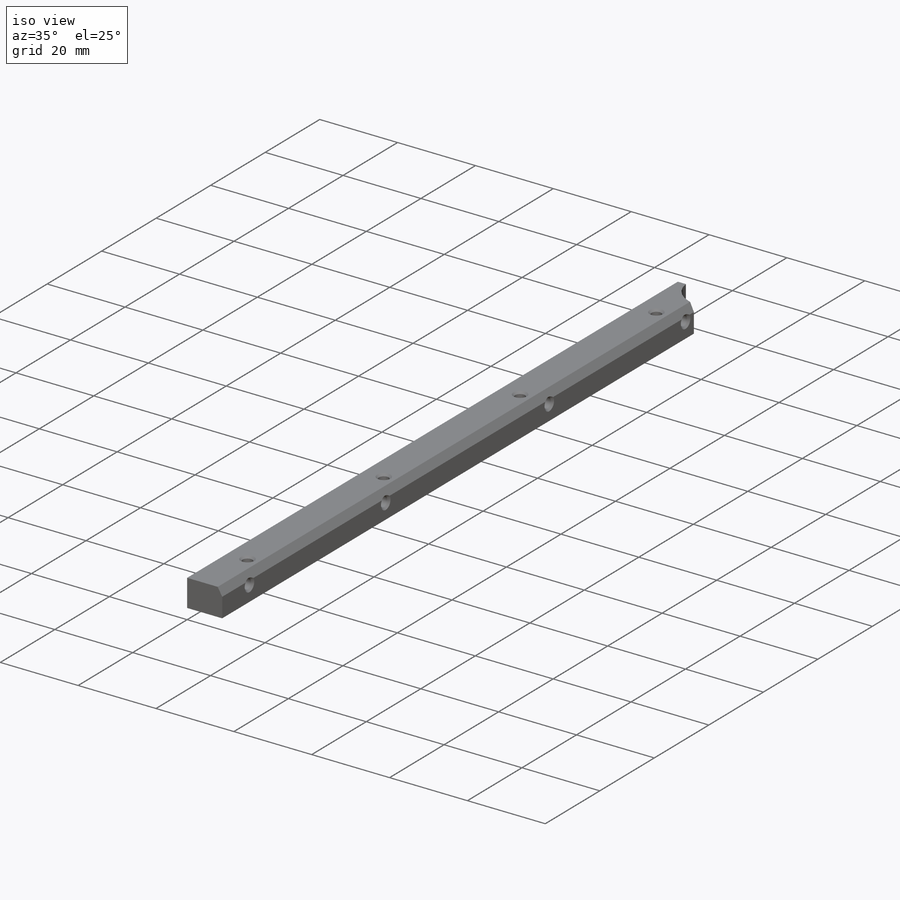
[diagram: iso view]
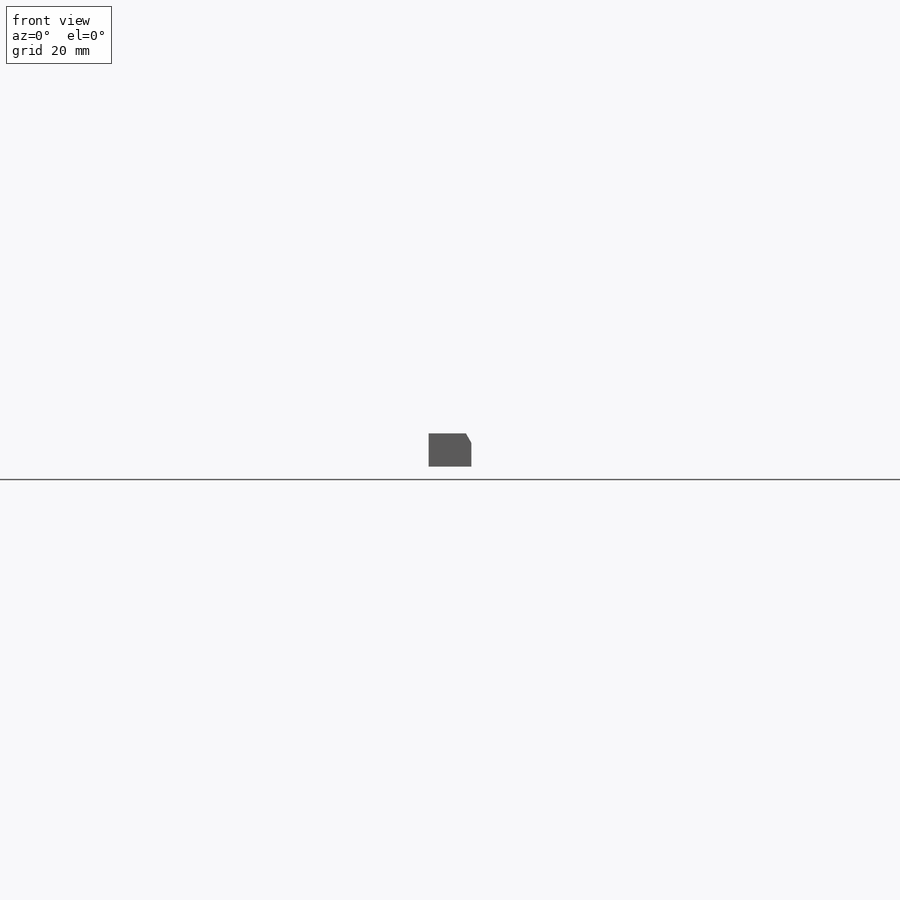
[diagram: front view]
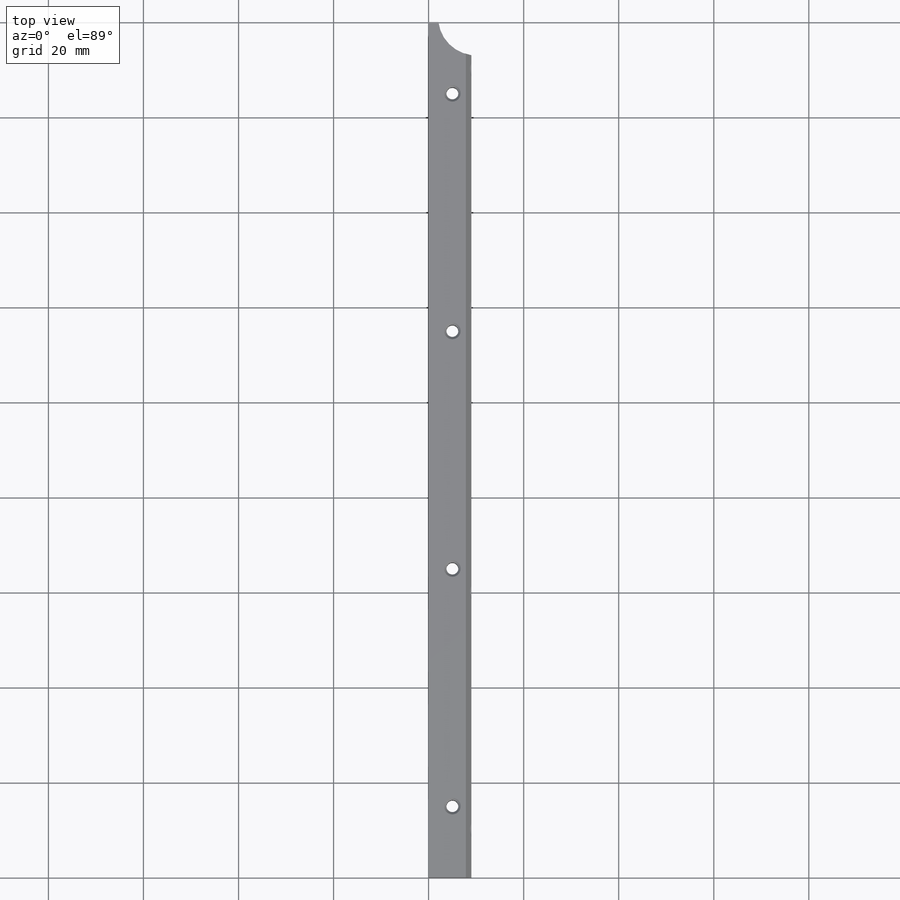
[diagram: top view]
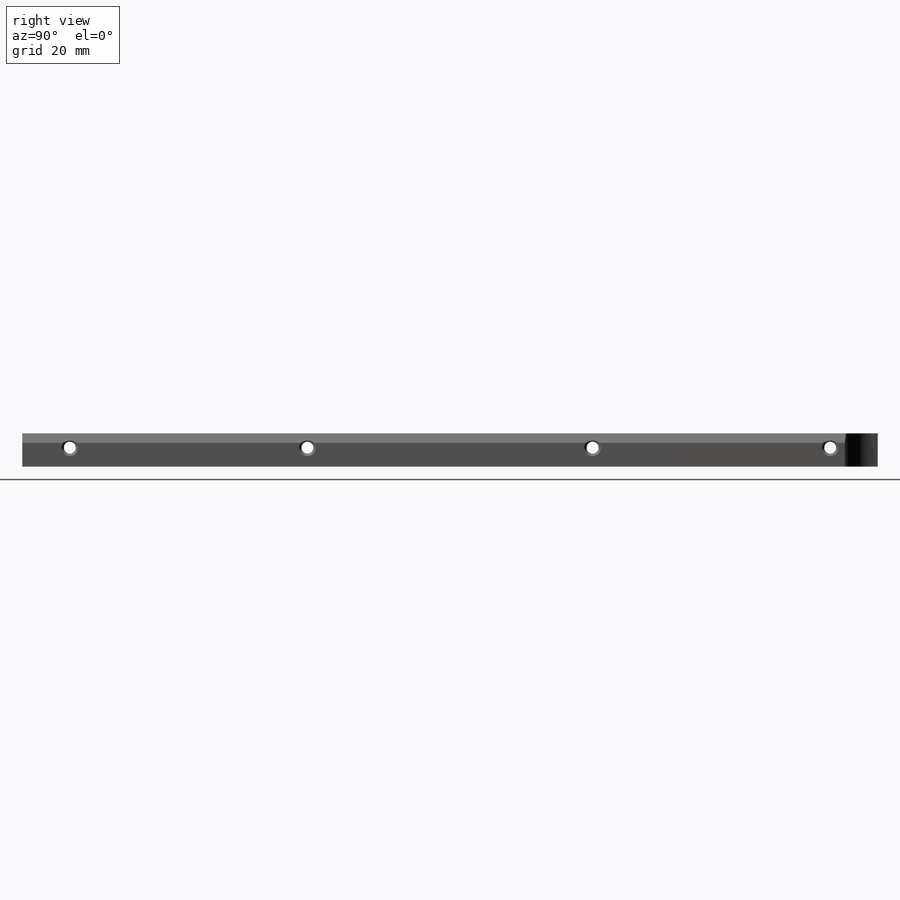
[diagram: right view]
SOLIDWORKS PART (.sldprt)
format: sldprt  version: not decoded by parser v0  size: 269,824 bytes
history: native  units: mm
features: thread x8, sketch x6, plane x3, hole x2, material x1, extrude x1, cut_extrude x1, chamfer x1 (+13 scaffold rows collapsed)
feature tree (36):
  scaffold x13  (default folders/planes/origin — collapsed)
  material  "2024-T3"
  plane  "Спереди"
  plane  "Сверху"
  plane  "Справа"
  sketch  "Эскиз1"  dims[D1=9.0mm D2=7.0mm]
  extrude  "Бобышка-Вытянуть1"  Depth=180mm
  sketch  "Эскиз6"  dims[c1.D1=8.0mm c1.D2=8.0mm c1.D3=8.0mm c2.D2=1.0mm c2.D3=1.0mm]
  cut_extrude  "Вырез-Вытянуть1"  [1 undecoded]
  chamfer  "Фаска1"  Distance=2mm Angle=30deg
  hole  "Отверстие обработанное метчиком M31"  [1 undecoded]
  sketch  "Эскиз3"  dims[D1=50.0mm D2=50.0mm D3=50.0mm D4=15.0mm D5=5.0mm]
  sketch  "Эскиз2"  dims[hole-wizard template sketch: 47 standard entries collapsed; hole parameters kept: c15.Глубина проходного сверла=7.0mm c15.Диаметр передней зенковки=3.5mm c15.D4=~3.666174mm c15.Угол передней зенковки=90.0deg c15.Диаметр задней зенковки=3.5mm c15.D6=~9.919017mm c15.Угол задней зенковки=90.0deg]
  thread  "Отверстие резьбы1"  Diameter=3mm  [1 undecoded]
  thread  "Отверстие резьбы2"  Diameter=3mm  [1 undecoded]
  thread  "Отверстие резьбы3"  Diameter=3mm  [1 undecoded]
  thread  "Отверстие резьбы4"  Diameter=3mm  [1 undecoded]
  hole  "Отверстие обработанное метчиком M32"  [1 undecoded]
  sketch  "Эскиз5"  dims[D1=50.0mm D2=60.0mm D3=50.0mm D4=10.0mm D5=4.0mm]
  sketch  "Эскиз4"  dims[hole-wizard template sketch: 47 standard entries collapsed; hole parameters kept: c15.Глубина проходного сверла=9.0mm c15.Диаметр передней зенковки=3.5mm c15.D4=~3.666174mm c15.Угол передней зенковки=90.0deg c15.Диаметр задней зенковки=3.5mm c15.D6=~9.919017mm c15.Угол задней зенковки=90.0deg]
  thread  "Отверстие резьбы5"  Diameter=3mm  [1 undecoded]
  thread  "Отверстие резьбы6"  Diameter=3mm  [1 undecoded]
  thread  "Отверстие резьбы7"  Diameter=3mm  [1 undecoded]
  thread  "Отверстие резьбы8"  Diameter=3mm  [1 undecoded]
decode coverage: 16 of 19 modeling features carry decoded parameters
note: ~ marks probable driven/reference dimensions
note: 11 parameter values undecoded
summary: no parameter record found for 3 features
note: suppression state not decoded; provenance and decode notes live in map.json
